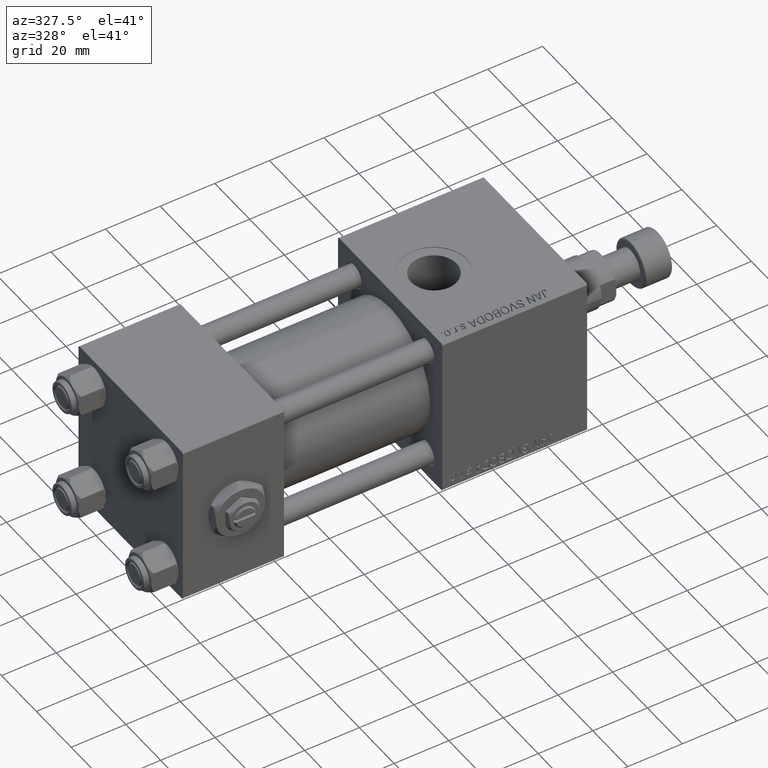
[diagram: clean part render]
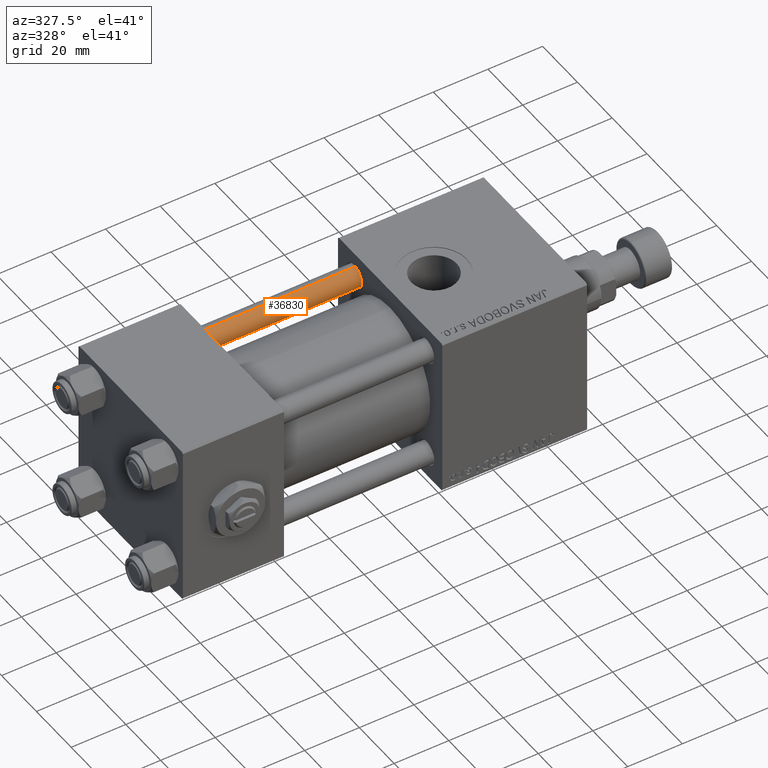
[diagram: same view with one face highlighted and labeled with its STEP entity id]
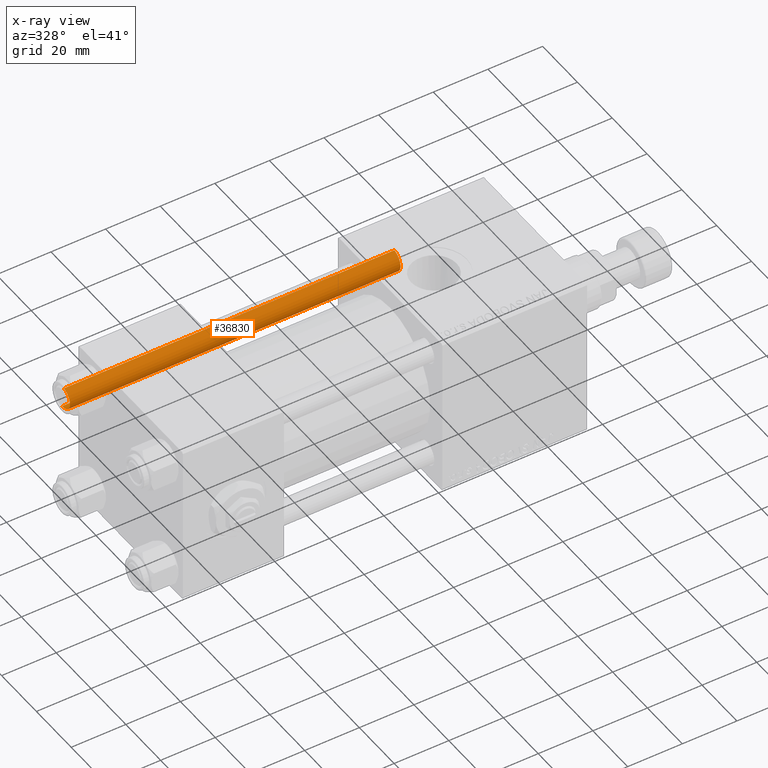
[diagram: x-ray of the same camera — body ghosted, the highlighted face saturated]
A machine part, auxiliary view. The second image highlights one B-rep face of the part: STEP entity #36830.
The next image is the same camera in x-ray: the body ghosted, the highlighted face saturated — about 0% of this face is hidden behind the body in this view.
In plain terms, the highlighted cylindrical surface (edge-blend (fillet) strip) has radius 4 mm, axis along (-1, 0, 0).
Its self-contained STEP definition (entity closure, byte-faithful):
#2004 = VECTOR ( 'NONE', #34226, 1000.000000000000000 ) ;
#2010 = CARTESIAN_POINT ( 'NONE',  ( 4.000000000000000000, 4.898587196589411843E-16, 121.5000000000000426 ) ) ;
#2702 = VERTEX_POINT ( 'NONE', #9727 ) ;
#6978 = CARTESIAN_POINT ( 'NONE',  ( -4.000000000000000000, 0.000000000000000000, 121.5000000000000426 ) ) ;
#9064 = FACE_OUTER_BOUND ( 'NONE', #38980, .T. ) ;
#9727 = CARTESIAN_POINT ( 'NONE',  ( -4.000000000000000000, 0.000000000000000000, 0.5000000000000559552 ) ) ;
#10374 = EDGE_CURVE ( 'NONE', #44684, #50955, #46995, .T. ) ;
#12866 = ORIENTED_EDGE ( 'NONE', *, *, #10374, .F. ) ;
#13214 = DIRECTION ( 'NONE',  ( -0.000000000000000000, -0.000000000000000000, 1.000000000000000000 ) ) ;
#13654 = CARTESIAN_POINT ( 'NONE',  ( 4.000000000000000000, 4.898587196589411843E-16, 0.5000000000000559552 ) ) ;
#14601 = ORIENTED_EDGE ( 'NONE', *, *, #47506, .T. ) ;
#16054 = VECTOR ( 'NONE', #51028, 1000.000000000000000 ) ;
#16356 = VERTEX_POINT ( 'NONE', #6978 ) ;
#17217 = CARTESIAN_POINT ( 'NONE',  ( 0.000000000000000000, 0.000000000000000000, 0.5000000000000559552 ) ) ;
#17474 = DIRECTION ( 'NONE',  ( 1.000000000000000000, 0.000000000000000000, 0.000000000000000000 ) ) ;
#21980 = CARTESIAN_POINT ( 'NONE',  ( 4.000000000000000000, 4.898587196589411843E-16, 122.0000000000000000 ) ) ;
#22463 = CARTESIAN_POINT ( 'NONE',  ( 0.000000000000000000, 0.000000000000000000, 121.5000000000000426 ) ) ;
#24775 = CARTESIAN_POINT ( 'NONE',  ( 0.000000000000000000, 0.000000000000000000, 122.0000000000000000 ) ) ;
#25032 = DIRECTION ( 'NONE',  ( -1.000000000000000000, 0.000000000000000000, 0.000000000000000000 ) ) ;
#26937 = ORIENTED_EDGE ( 'NONE', *, *, #48571, .T. ) ;
#30467 = AXIS2_PLACEMENT_3D ( 'NONE', #17217, #13214, #17474 ) ;
#31581 = LINE ( 'NONE', #46760, #16054 ) ;
#34226 = DIRECTION ( 'NONE',  ( -0.000000000000000000, -0.000000000000000000, -1.000000000000000000 ) ) ;
#36318 = ORIENTED_EDGE ( 'NONE', *, *, #47856, .T. ) ;
#36830 = ADVANCED_FACE ( 'NONE', ( #9064 ), #37536, .T. ) ;
#37536 = CYLINDRICAL_SURFACE ( 'NONE', #44660, 4.000000000000000000 ) ;
#38131 = CIRCLE ( 'NONE', #52562, 4.000000000000000000 ) ;
#38980 = EDGE_LOOP ( 'NONE', ( #12866, #36318, #26937, #14601 ) ) ;
#42694 = DIRECTION ( 'NONE',  ( 1.000000000000000000, 0.000000000000000000, 0.000000000000000000 ) ) ;
#44058 = CIRCLE ( 'NONE', #30467, 4.000000000000000000 ) ;
#44660 = AXIS2_PLACEMENT_3D ( 'NONE', #24775, #45251, #25032 ) ;
#44684 = VERTEX_POINT ( 'NONE', #2010 ) ;
#45251 = DIRECTION ( 'NONE',  ( -0.000000000000000000, -0.000000000000000000, -1.000000000000000000 ) ) ;
#46760 = CARTESIAN_POINT ( 'NONE',  ( -4.000000000000000000, 0.000000000000000000, 122.0000000000000000 ) ) ;
#46995 = LINE ( 'NONE', #21980, #2004 ) ;
#47506 = EDGE_CURVE ( 'NONE', #2702, #50955, #44058, .T. ) ;
#47856 = EDGE_CURVE ( 'NONE', #44684, #16356, #38131, .T. ) ;
#48571 = EDGE_CURVE ( 'NONE', #16356, #2702, #31581, .T. ) ;
#50955 = VERTEX_POINT ( 'NONE', #13654 ) ;
#51028 = DIRECTION ( 'NONE',  ( -0.000000000000000000, -0.000000000000000000, -1.000000000000000000 ) ) ;
#51478 = DIRECTION ( 'NONE',  ( 0.000000000000000000, 0.000000000000000000, -1.000000000000000000 ) ) ;
#52562 = AXIS2_PLACEMENT_3D ( 'NONE', #22463, #51478, #42694 ) ;